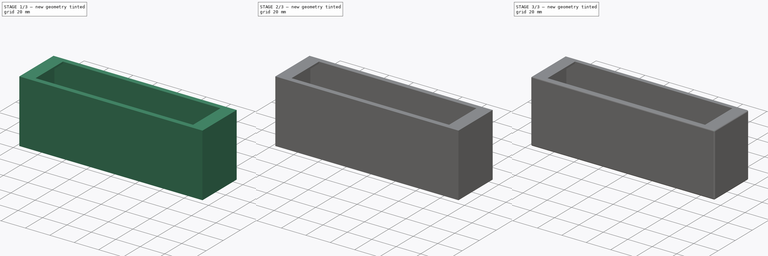
[diagram: build sequence overview — one tinted view per stage of 3, left to right]
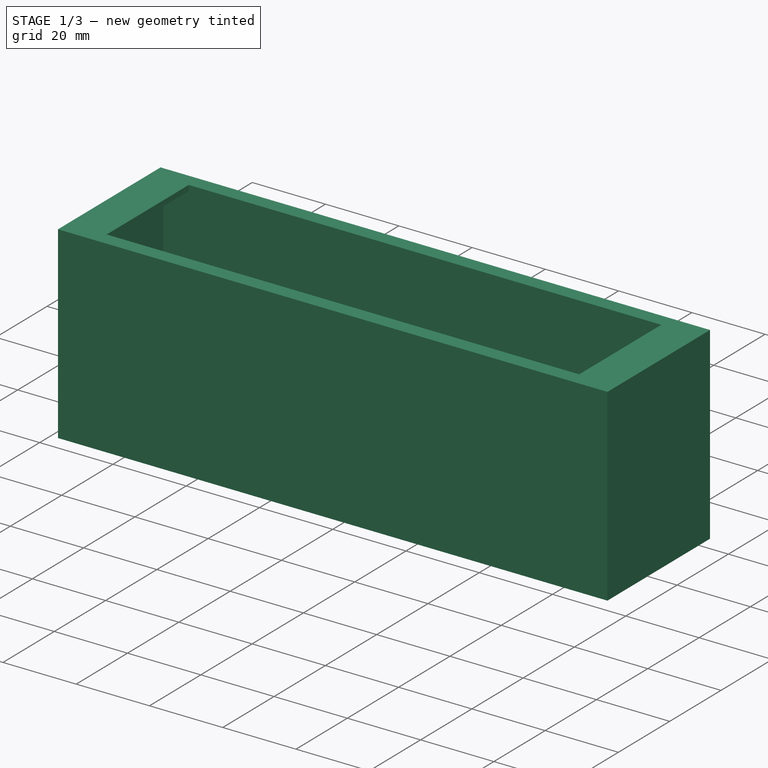
[diagram: stage 1 of 3 — iso view after this stage's code; geometry added in this stage tinted green]
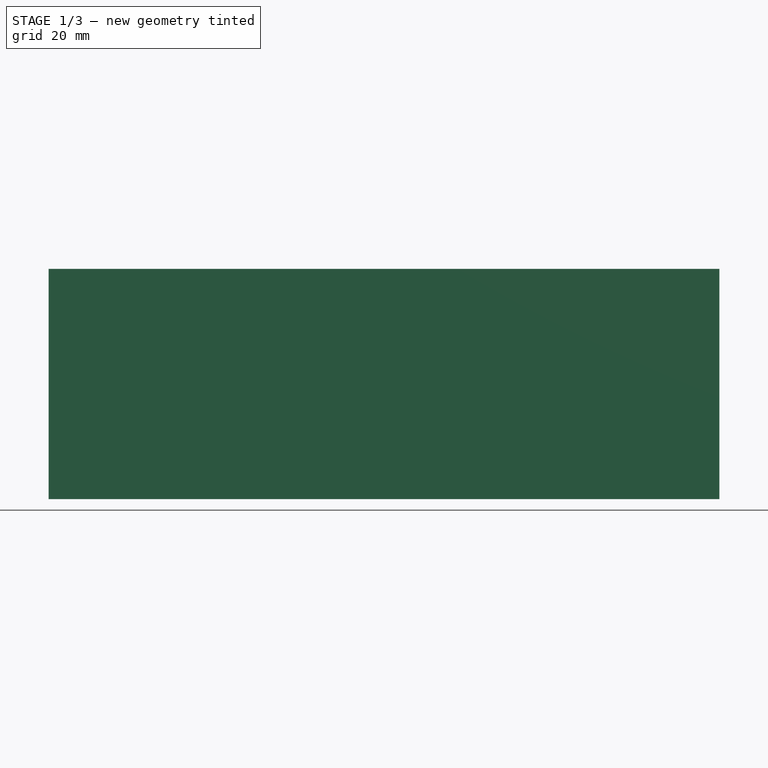
[diagram: stage 1 of 3 — front view after this stage's code; geometry added in this stage tinted green]
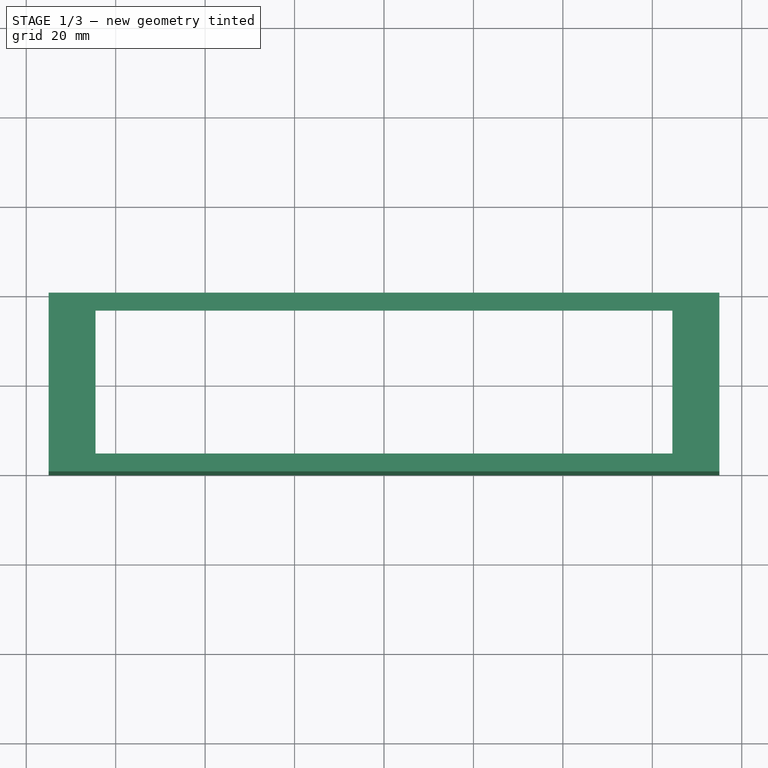
[diagram: stage 1 of 3 — top view after this stage's code; geometry added in this stage tinted green]
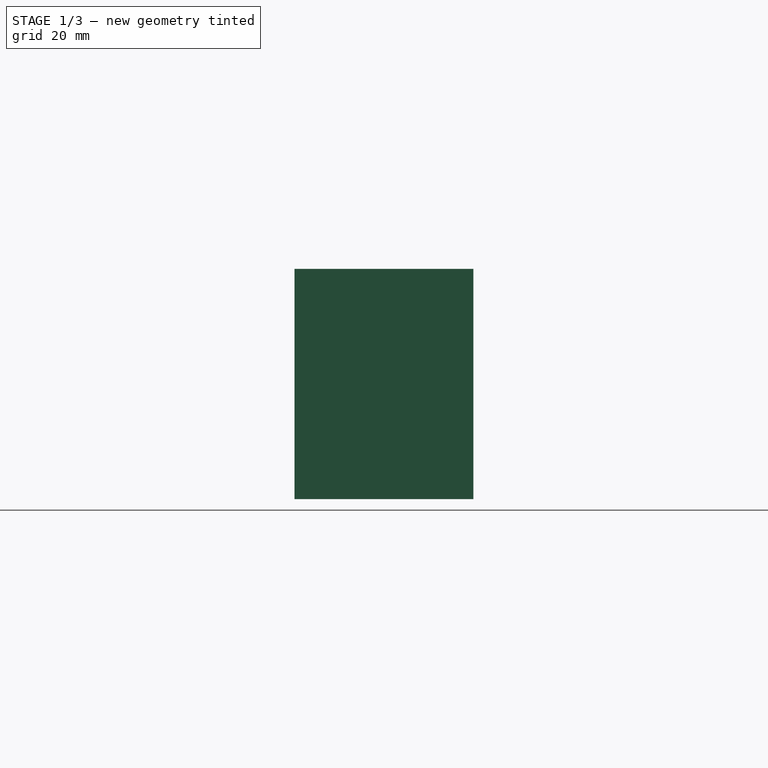
[diagram: stage 1 of 3 — right view after this stage's code; geometry added in this stage tinted green]
FCSTD DOCUMENT  (FreeCAD 0.18R16117 (Git))
Label: ClockEnclosure
License: All rights reserved
LicenseURL: http://en.wikipedia.org/wiki/All_rights_reserved
objects: Sketcher::SketchObject×6, PartDesign::Pad×4, PartDesign::Pocket×2, PartDesign::Body×2, PartDesign::Mirrored×1, PartDesign::Fillet×1, PartDesign::ShapeBinder×1
note: 23 computed .brp shape members not serialized (recipe doc carries the construction recipe); baked Part::Feature solids carry a one-line shape summary decoded from their .brp

FEATURE [Sketcher::SketchObject] Sketch
  MapMode = 5
  Support = -> [XY_Plane]
  sketch-geometry (8):
    g0: LineSegment StartX=-75 StartY=40 StartZ=0 EndX=75 EndY=40 EndZ=0
    g1: LineSegment StartX=75 StartY=40 StartZ=0 EndX=75 EndY=0 EndZ=0
    g2: LineSegment StartX=75 StartY=0 StartZ=0 EndX=-75 EndY=0 EndZ=0
    g3: LineSegment StartX=-75 StartY=0 StartZ=0 EndX=-75 EndY=40 EndZ=0
    g4: LineSegment StartX=-72.6 StartY=37.6 StartZ=0 EndX=72.6 EndY=37.6 EndZ=0
    g5: LineSegment StartX=72.6 StartY=37.6 StartZ=0 EndX=72.6 EndY=2.4 EndZ=0
    g6: LineSegment StartX=72.6 StartY=2.4 StartZ=0 EndX=-72.6 EndY=2.4 EndZ=0
    g7: LineSegment StartX=-72.6 StartY=2.4 StartZ=0 EndX=-72.6 EndY=37.6 EndZ=0
  constraints (24):
    c: Coincident(g0,g1)
    c: Coincident(g1,g2)
    c: Coincident(g2,g3)
    c: Coincident(g3,g0)
    c: Horizontal(g0)
    c: Horizontal(g2)
    c: Vertical(g1)
    c: Vertical(g3)
    c: DistanceX(g0,g0) = 150
    c: DistanceY(g3,g3) = 40
    c: Coincident(g4,g5)
    c: Coincident(g5,g6)
    c: Coincident(g6,g7)
    c: Horizontal(g4)
    c: Horizontal(g6)
    c: Vertical(g5)
    c: Vertical(g7)
    c: DistanceX(g2,g6) = 2.4
    c: DistanceY(g1,g5) = 2.4
    c: DistanceY(g4,g0) = 2.4
    c: DistanceX(g4,g0) = 2.4
    c: Coincident(g4,g7)
    c: DistanceX(g2,g-1) = 75
    c: DistanceY(g-1,g1) = 0
FEATURE [PartDesign::Pad] Pad
  Length = 50
  Length2 = 100
  Profile = -> Sketch
  Type = 0
FEATURE [Sketcher::SketchObject] Sketch001
  ExternalGeometry = -> [Pad]
  MapMode = 5
  Placement = pos=(0,0,50) rot=(0,0,1;0rad)
  Support = -> [Pad]
  sketch-geometry (4):
    g0: LineSegment StartX=-75 StartY=40 StartZ=0 EndX=75 EndY=40 EndZ=0
    g1: LineSegment StartX=75 StartY=40 StartZ=0 EndX=75 EndY=0 EndZ=0
    g2: LineSegment StartX=75 StartY=0 StartZ=0 EndX=-75 EndY=0 EndZ=0
    g3: LineSegment StartX=-75 StartY=0 StartZ=0 EndX=-75 EndY=40 EndZ=0
  constraints (8):
    c: Coincident(g0,g1)
    c: Coincident(g1,g2)
    c: Coincident(g2,g3)
    c: Coincident(g3,g0)
    c: Coincident(g0,g-6)
    c: Coincident(g1,g-6)
    c: Coincident(g0,g-4)
    c: Coincident(g2,g-5)
FEATURE [PartDesign::Pad] Pad001
  BaseFeature = -> Pad
  Length = 1.5
  Length2 = 100
  Profile = -> Sketch001
  Type = 0
FEATURE [Sketcher::SketchObject] Sketch002
  ExternalGeometry = -> [Pad001]
  MapMode = 5
  Placement = pos=(0,0,51.5) rot=(0,0,1;0rad)
  Support = -> [Pad001]
  sketch-geometry (4):
    g0: LineSegment StartX=-64.5 StartY=36 StartZ=0 EndX=64.5 EndY=36 EndZ=0
    g1: LineSegment StartX=64.5 StartY=36 StartZ=0 EndX=64.5 EndY=4 EndZ=0
    g2: LineSegment StartX=64.5 StartY=4 StartZ=0 EndX=-64.5 EndY=4 EndZ=0
    g3: LineSegment StartX=-64.5 StartY=4 StartZ=0 EndX=-64.5 EndY=36 EndZ=0
  constraints (14):
    c: Coincident(g0,g1)
    c: Coincident(g1,g2)
    c: Coincident(g2,g3)
    c: Coincident(g3,g0)
    c: Horizontal(g0)
    c: Horizontal(g2)
    c: Vertical(g1)
    c: Vertical(g3)
    c: DistanceX(g0,g0) = 129
    c: DistanceY(g1,g1) = 32
    c: DistanceX(g-5,g-5) = 150
    c: DistanceX(g1,g-3) = 10.5
    c: DistanceY(g-3,g-3) = 40
    c: DistanceY(g-3,g1) = 4
FEATURE [PartDesign::Pocket] Pocket
  BaseFeature = -> Pad001
  Length = 2
  Length2 = 100
  Profile = -> Sketch002
  Type = 0
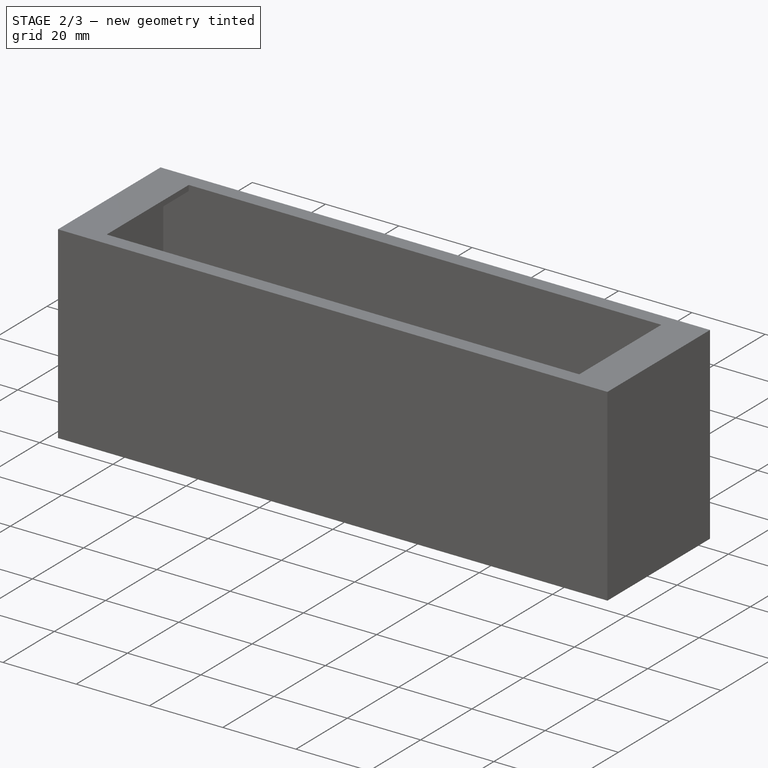
[diagram: stage 2 of 3 — iso view after this stage's code; geometry added in this stage tinted green]
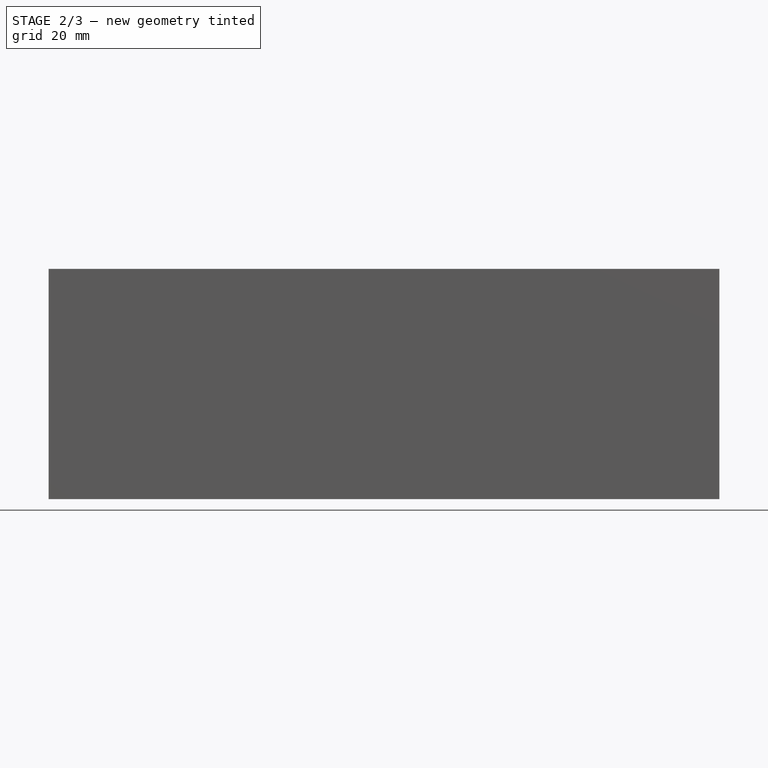
[diagram: stage 2 of 3 — front view after this stage's code; geometry added in this stage tinted green]
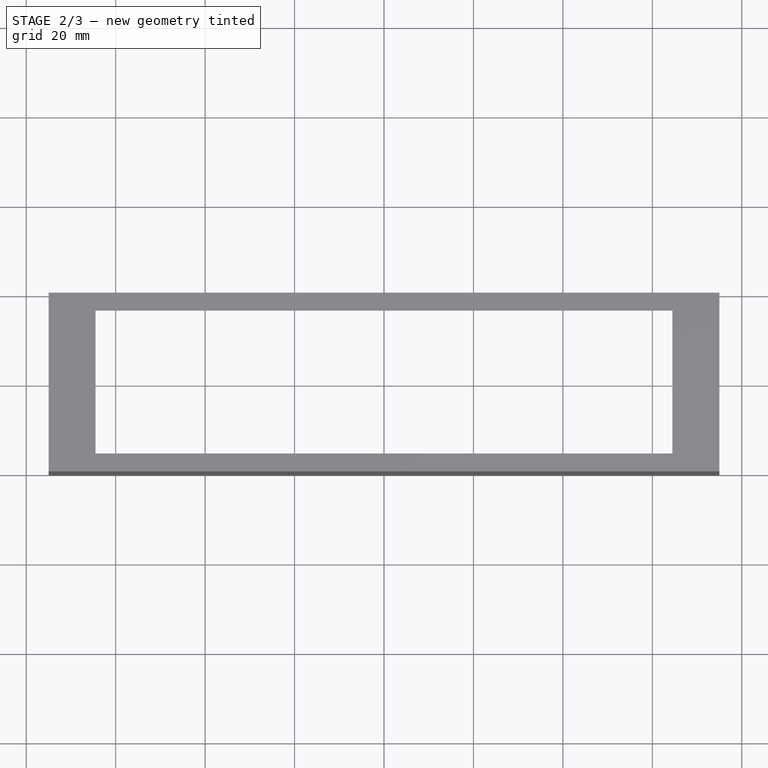
[diagram: stage 2 of 3 — top view after this stage's code; geometry added in this stage tinted green]
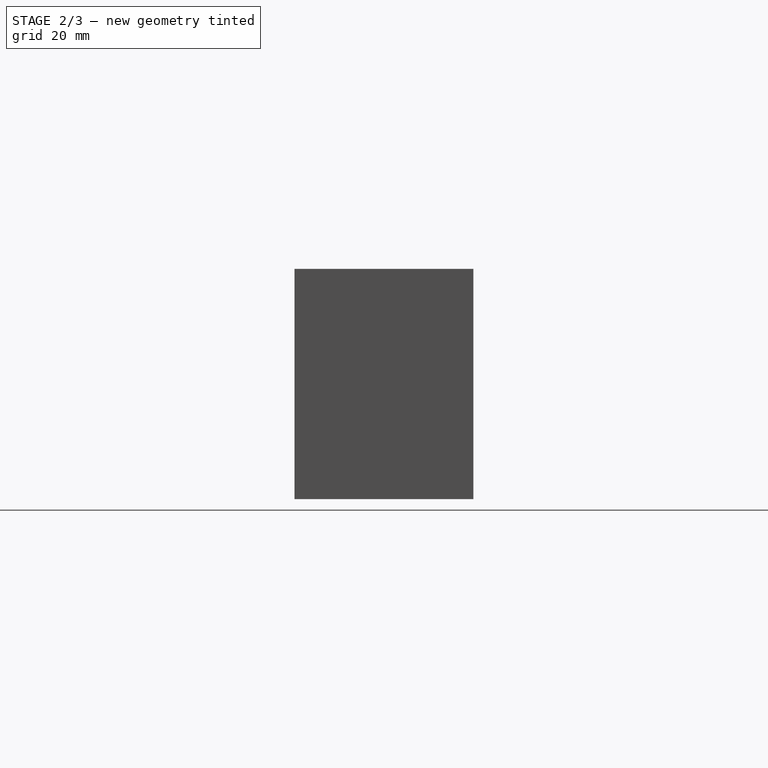
[diagram: stage 2 of 3 — right view after this stage's code; geometry added in this stage tinted green]
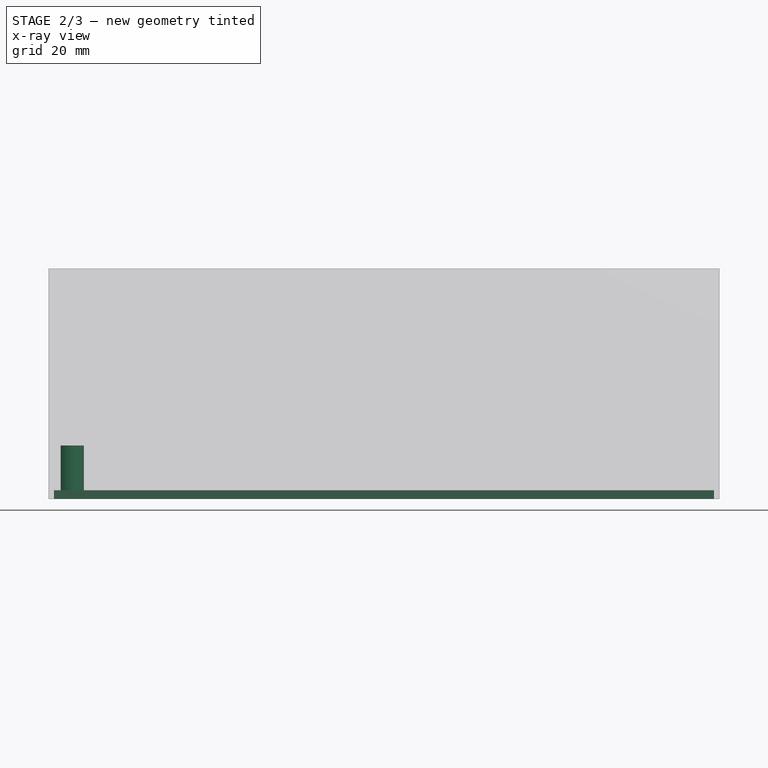
[diagram: stage 2 of 3 — x-ray composite at the front view; earlier geometry ghosted, this stage's added geometry solid]
FEATURE [Sketcher::SketchObject] Sketch003
  ExternalGeometry = -> [Pocket]
  MapMode = 5
  Placement = pos=(0,0,0) rot=(1,0,0;3.14159rad)
  Support = -> [Pocket]
  sketch-geometry (4):
    g0: LineSegment StartX=-73.8 StartY=-1.2 StartZ=0 EndX=73.8 EndY=-1.2 EndZ=0
    g1: LineSegment StartX=73.8 StartY=-1.2 StartZ=0 EndX=73.8 EndY=-38.8 EndZ=0
    g2: LineSegment StartX=73.8 StartY=-38.8 StartZ=0 EndX=-73.8 EndY=-38.8 EndZ=0
    g3: LineSegment StartX=-73.8 StartY=-38.8 StartZ=0 EndX=-73.8 EndY=-1.2 EndZ=0
  constraints (12):
    c: Coincident(g0,g1)
    c: Coincident(g1,g2)
    c: Coincident(g2,g3)
    c: Coincident(g3,g0)
    c: Horizontal(g0)
    c: Horizontal(g2)
    c: Vertical(g1)
    c: Vertical(g3)
    c: DistanceX(g-3,g1) = 1.2
    c: DistanceY(g1,g-3) = 1.2
    c: DistanceY(g-5,g0) = 1.2
    c: DistanceX(g0,g-5) = 1.2
FEATURE [PartDesign::Pocket] Pocket001
  BaseFeature = -> Pocket
  Length = 2
  Length2 = 100
  Profile = -> Sketch003
  Type = 0
FEATURE [Sketcher::SketchObject] Sketch004
  ExternalGeometry = -> [Pocket001]
  MapMode = 5
  Placement = pos=(0,0,2) rot=(1,0,0;3.14159rad)
  Support = -> [Pocket001]
  sketch-geometry (2):
    g0: Circle CenterX=-70.6 CenterY=-20 CenterZ=0 NormalX=0 NormalY=0 NormalZ=1 AngleXU=0 Radius=3.5
    g1: Circle CenterX=-70.6 CenterY=-20 CenterZ=0 NormalX=0 NormalY=0 NormalZ=1 AngleXU=0 Radius=1.5
  constraints (7):
    c: DistanceY(g-3,g-3) = 35.2
    c: DistanceY(g-3,g0) = 17.6
    c: DistanceX(g-3,g0) = 2
    c: Radius(g0) = 3.5
    c: Radius(g1) = 1.5
    c: Coincident(g1,g0)
    c: DistanceX(g-5,g-5) = 145.2
FEATURE [PartDesign::Pad] Pad002
  BaseFeature = -> Pocket001
  Length = 10
  Length2 = 100
  Profile = -> Sketch004
  Reversed = true
  Type = 0
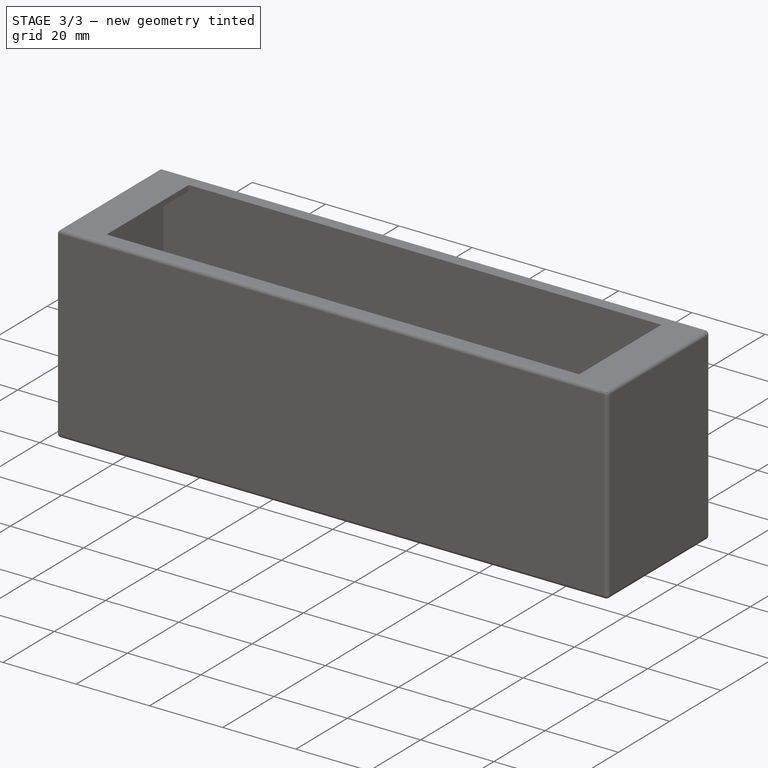
[diagram: stage 3 of 3 — iso view after this stage's code; geometry added in this stage tinted green]
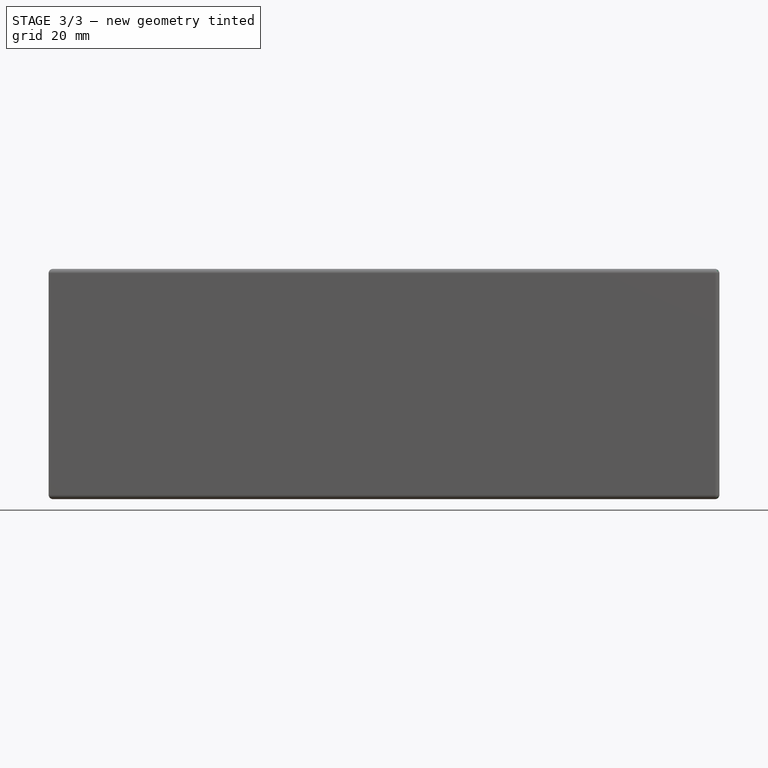
[diagram: stage 3 of 3 — front view after this stage's code; geometry added in this stage tinted green]
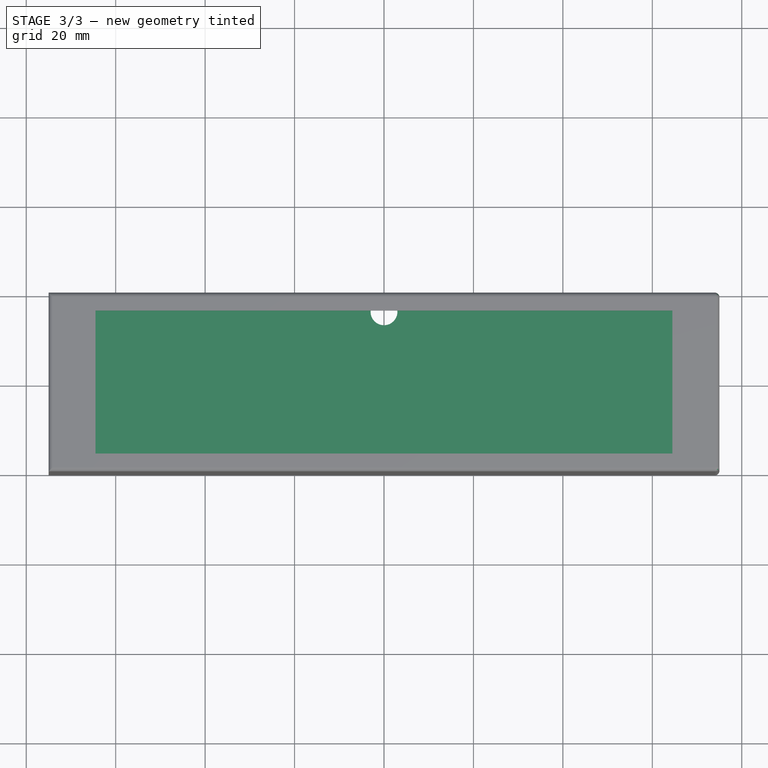
[diagram: stage 3 of 3 — top view after this stage's code; geometry added in this stage tinted green]
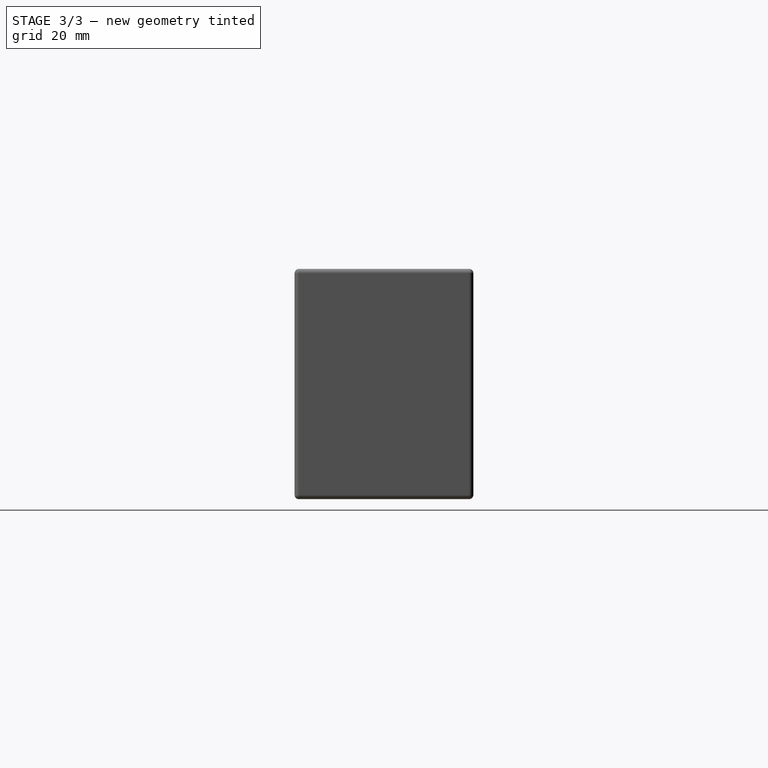
[diagram: stage 3 of 3 — right view after this stage's code; geometry added in this stage tinted green]
FEATURE [PartDesign::Mirrored] Mirrored
  BaseFeature = -> Pad002
  MirrorPlane = -> Sketch004 [V_Axis]
  Originals = -> [Pad002]
FEATURE [PartDesign::Fillet] Fillet
  Base = -> Mirrored [Edge18,Edge21,Edge36,Edge23,Edge2,Edge8,Edge9,Edge11,Edge3,Edge6]
  BaseFeature = -> Mirrored
  Radius = 1
FEATURE [PartDesign::Body] Body  label="Enclosure"
  Group = -> [Sketch,Pad,Sketch001,Pad001,Sketch002,Pocket,Sketch003,Pocket001,Sketch004,Pad002,Mirrored,Fillet]
  Origin = -> Origin
  Tip = -> Fillet
FEATURE [PartDesign::ShapeBinder] ShapeBinder
  Support = -> [Mirrored]
  TraceSupport = false
FEATURE [Sketcher::SketchObject] Sketch005
  ExternalGeometry = -> [ShapeBinder]
  MapMode = 5
  Placement = pos=(0,0,2) rot=(1,0,0;3.14159rad)
  Support = -> [Fillet]
  sketch-geometry (8):
    g0: LineSegment StartX=-2 StartY=-38.8 StartZ=0 EndX=-73.8 EndY=-38.8 EndZ=0
    g1: LineSegment StartX=-73.8 StartY=-38.8 StartZ=0 EndX=-73.8 EndY=-1.2 EndZ=0
    g2: LineSegment StartX=-73.8 StartY=-1.2 StartZ=0 EndX=73.8 EndY=-1.2 EndZ=0
    g3: LineSegment StartX=73.8 StartY=-1.2 StartZ=0 EndX=73.8 EndY=-38.8 EndZ=0
    g4: LineSegment StartX=73.8 StartY=-38.8 StartZ=0 EndX=2 EndY=-38.8 EndZ=0
    g5: ArcOfCircle CenterX=0 CenterY=-36.5639 CenterZ=0 NormalX=0 NormalY=0 NormalZ=1 AngleXU=0 Radius=3 StartAngle=5.44212 EndAngle=10.2658
    g6: Circle CenterX=70.6 CenterY=-20 CenterZ=0 NormalX=0 NormalY=0 NormalZ=1 AngleXU=0 Radius=1.5
    g7: Circle CenterX=-70.6 CenterY=-20 CenterZ=0 NormalX=0 NormalY=0 NormalZ=1 AngleXU=0 Radius=1.5
  constraints (19):
    c: Coincident(g0,g1)
    c: Coincident(g1,g2)
    c: Coincident(g2,g3)
    c: Coincident(g3,g4)
    c: Coincident(g1,g-7)
    c: Coincident(g-4,g2)
    c: Coincident(g3,g-6)
    c: Coincident(g0,g-7)
    c: Coincident(g4,g5)
    c: Coincident(g5,g0)
    c: PointOnObject(g0,g-6)
    c: PointOnObject(g4,g-6)
    c: Radius(g5) = 3
    c: Radius(g6) = 1.5
    c: Coincident(g6,g-5)
    c: Radius(g7) = 1.5
    c: Coincident(g7,g-8)
    c: PointOnObject(g5,g-2)
    c: DistanceX(g5,g4) = 2
FEATURE [PartDesign::Pad] Pad003
  Length = 2
  Length2 = 100
  Profile = -> Sketch005
  Type = 0
FEATURE [PartDesign::Body] Body001  label="Lid"
  Group = -> [ShapeBinder,Sketch005,Pad003]
  Origin = -> Origin001
  Tip = -> Pad003
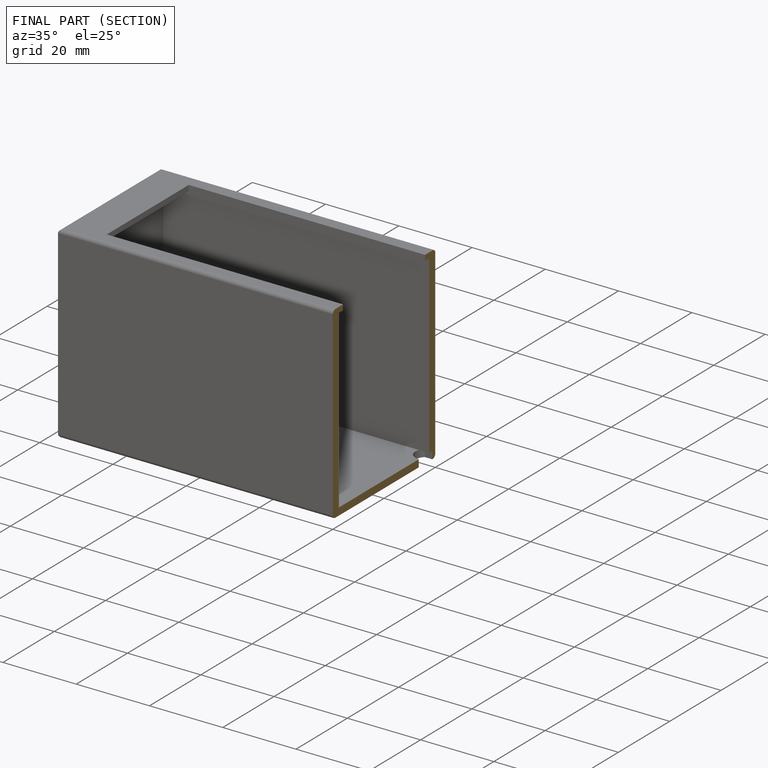
[diagram: finished part — half-section view (interior)]
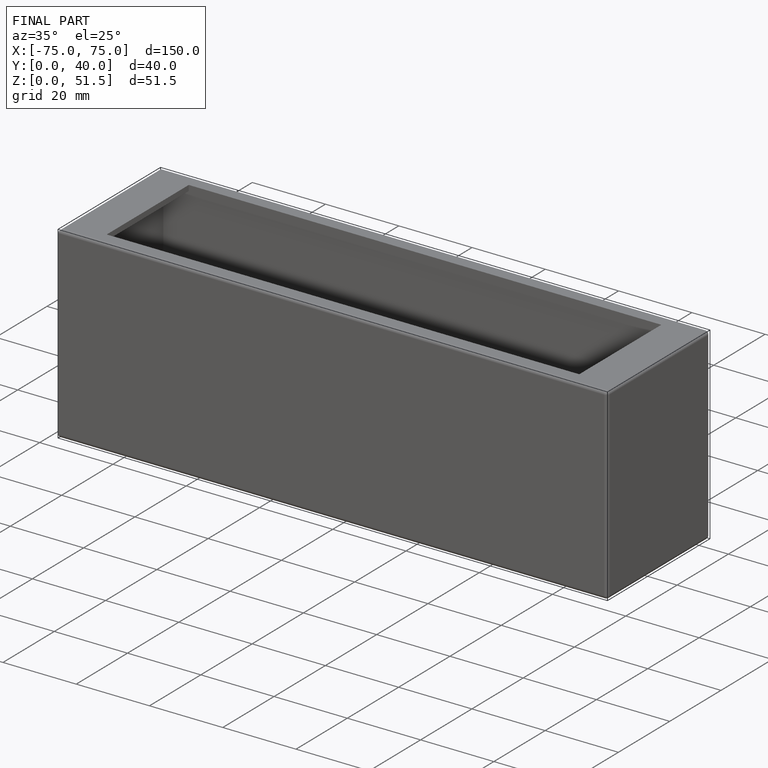
[diagram: finished part — iso view with bounding-box wireframe]
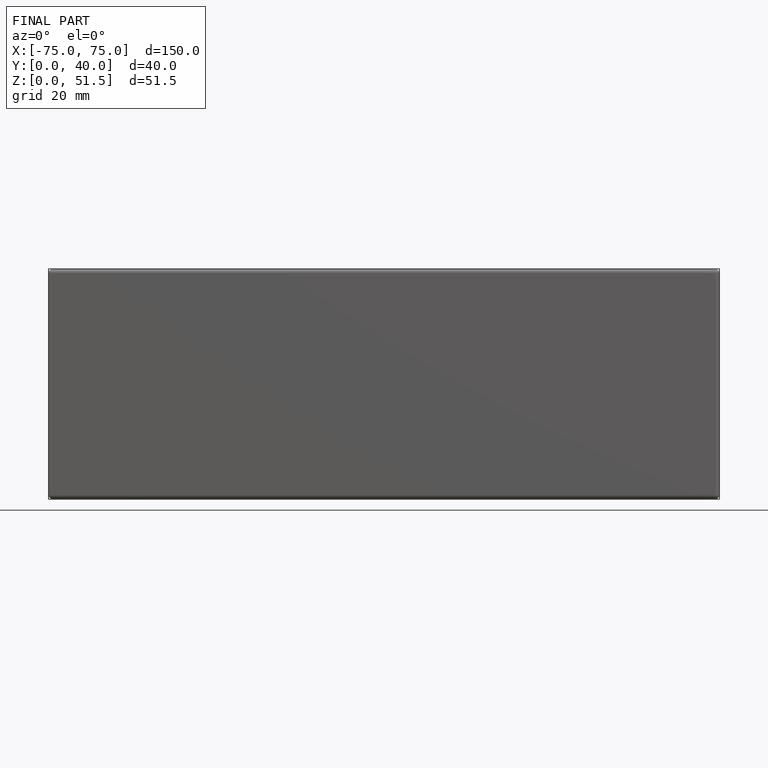
[diagram: finished part — front view with bounding-box wireframe]
